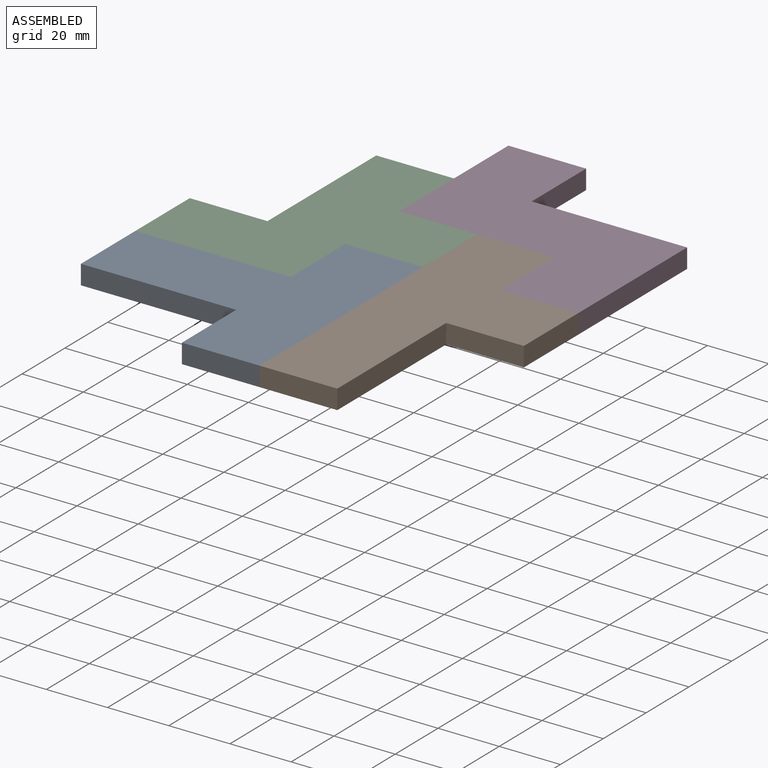
[diagram: assembled view]
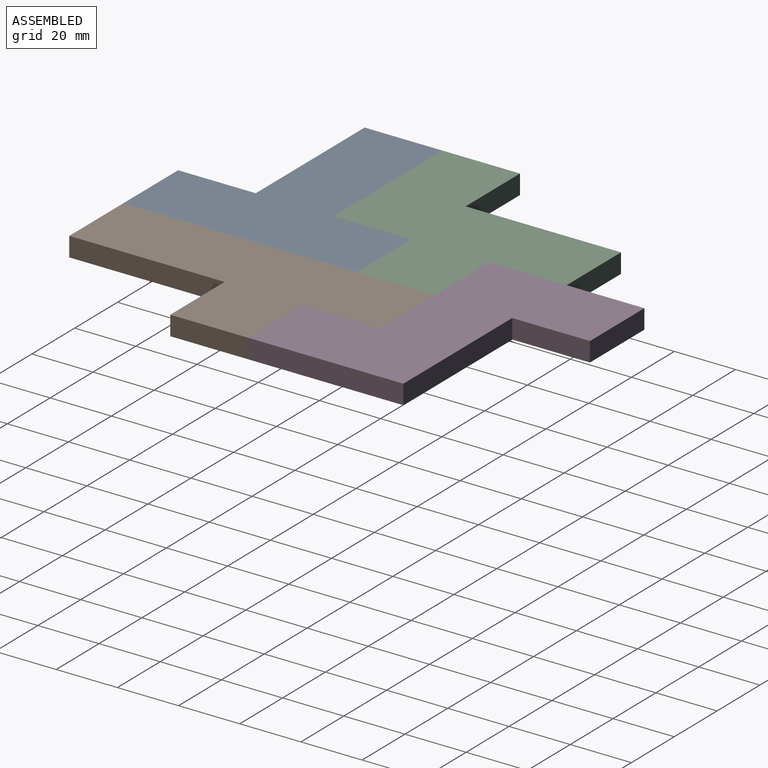
[diagram: assembled view, second angle]
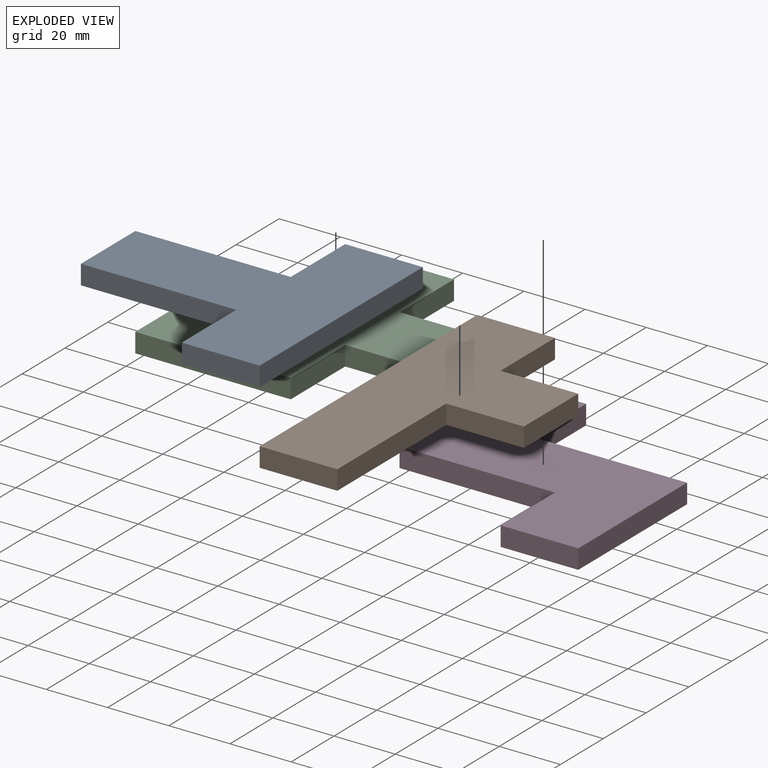
[diagram: exploded view]
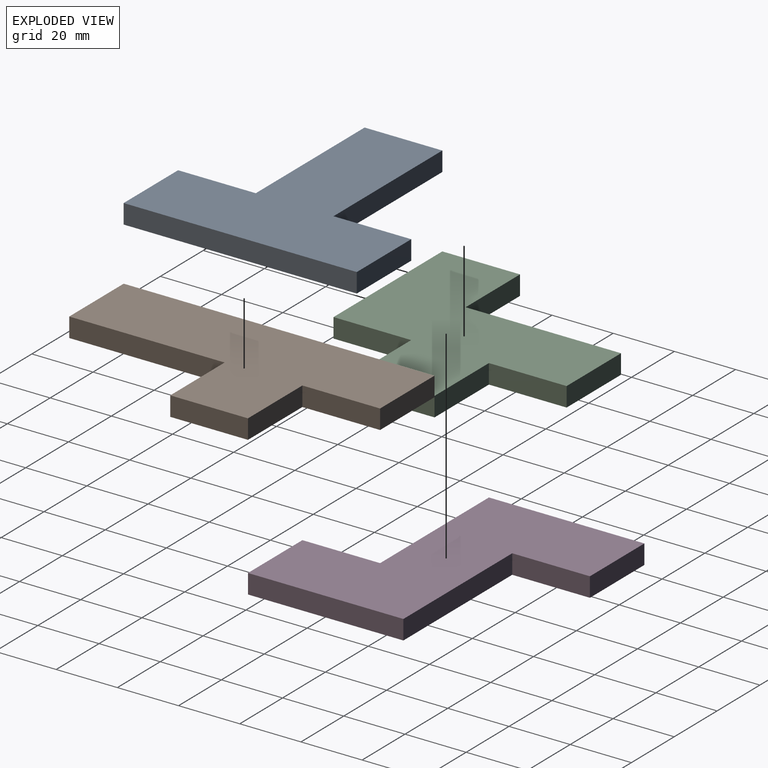
[diagram: exploded view, second angle]
ASSEMBLY  parts=4 mates=3
PART A: 10 faces, bbox 76.2x76.2x6.4 mm
  f0: plane 25.4x6.35mm, normal (0,-1,0), area 161.3mm2, adj f1,f7,f8,f9
  f1: plane 25.4x6.35mm, normal (1,0,0), area 161.3mm2, adj f0,f2,f8,f9
  f2: plane 76.2x6.35mm, normal (0,1,0), area 483.9mm2, adj f1,f3,f8,f9
  f3: plane 25.4x6.35mm, normal (-1,0,0), area 161.3mm2, adj f2,f4,f8,f9
  f4: plane 25.4x6.35mm, normal (0,-1,0), area 161.3mm2, adj f3,f5,f8,f9
  f5: plane 50.8x6.35mm, normal (-1,0,0), area 322.6mm2, adj f4,f6,f8,f9
  f6: plane 25.4x6.35mm, normal (0,-1,0), area 161.3mm2, adj f5,f7,f8,f9
  f7: plane 50.8x6.35mm, normal (1,0,0), area 322.6mm2, adj f0,f6,f8,f9
  f8: plane 76.2x76.2mm, normal (0,0,1), area 3225.8mm2, adj f0,f1,f2,f3,f4,f5,f6,f7
  f9: plane 76.2x76.2mm, normal (0,0,-1), area 3225.8mm2, adj f0,f1,f2,f3,f4,f5,f6,f7
PART B: 10 faces, bbox 50.8x101.6x6.4 mm
  f0: plane 25.4x6.35mm, normal (0,1,0), area 161.3mm2, adj f1,f7,f8,f9
  f1: plane 101.6x6.35mm, normal (-1,0,0), area 645.2mm2, adj f0,f2,f8,f9
  f2: plane 25.4x6.35mm, normal (0,-1,0), area 161.3mm2, adj f1,f3,f8,f9
  f3: plane 50.8x6.35mm, normal (1,0,0), area 322.6mm2, adj f2,f4,f8,f9
  f4: plane 25.4x6.35mm, normal (0,-1,0), area 161.3mm2, adj f3,f5,f8,f9
  f5: plane 25.4x6.35mm, normal (1,0,0), area 161.3mm2, adj f4,f6,f8,f9
  f6: plane 25.4x6.35mm, normal (0,1,0), area 161.3mm2, adj f5,f7,f8,f9
  f7: plane 25.4x6.35mm, normal (1,0,0), area 161.3mm2, adj f0,f6,f8,f9
  f8: plane 101.6x50.8mm, normal (0,0,1), area 3225.8mm2, adj f0,f1,f2,f3,f4,f5,f6,f7
  f9: plane 101.6x50.8mm, normal (0,0,-1), area 3225.8mm2, adj f0,f1,f2,f3,f4,f5,f6,f7
PART C: 12 faces, bbox 76.2x76.2x6.4 mm
  f0: plane 50.8x6.35mm, normal (-1,0,0), area 322.6mm2, adj f1,f9,f10,f11
  f1: plane 25.4x6.35mm, normal (0,-1,0), area 161.3mm2, adj f0,f2,f10,f11
  f2: plane 25.4x6.35mm, normal (-1,0,0), area 161.3mm2, adj f1,f3,f10,f11
  f3: plane 25.4x6.35mm, normal (0,-1,0), area 161.3mm2, adj f2,f4,f10,f11
  f4: plane 25.4x6.35mm, normal (1,0,0), area 161.3mm2, adj f3,f5,f10,f11
  f5: plane 25.4x6.35mm, normal (0,-1,0), area 161.3mm2, adj f4,f6,f10,f11
  f6: plane 25.4x6.35mm, normal (1,0,0), area 161.3mm2, adj f5,f7,f10,f11
  f7: plane 50.8x6.35mm, normal (0,1,0), area 322.6mm2, adj f6,f8,f10,f11
  f8: plane 25.4x6.35mm, normal (1,0,0), area 161.3mm2, adj f7,f9,f10,f11
  f9: plane 25.4x6.35mm, normal (0,1,0), area 161.3mm2, adj f0,f8,f10,f11
  f10: plane 76.2x76.2mm, normal (0,0,1), area 3225.8mm2, adj f0,f1,f2,f3,f4,f5,f6,f7
  f11: plane 76.2x76.2mm, normal (0,0,-1), area 3225.8mm2, adj f0,f1,f2,f3,f4,f5,f6,f7
PART D: 10 faces, bbox 76.2x76.2x6.4 mm
  f0: plane 50.8x6.35mm, normal (0,1,0), area 322.6mm2, adj f1,f7,f8,f9
  f1: plane 25.4x6.35mm, normal (-1,0,0), area 161.3mm2, adj f0,f2,f8,f9
  f2: plane 25.4x6.35mm, normal (0,-1,0), area 161.3mm2, adj f1,f3,f8,f9
  f3: plane 50.8x6.35mm, normal (-1,0,0), area 322.6mm2, adj f2,f4,f8,f9
  f4: plane 50.8x6.35mm, normal (0,-1,0), area 322.6mm2, adj f3,f5,f8,f9
  f5: plane 25.4x6.35mm, normal (1,0,0), area 161.3mm2, adj f4,f6,f8,f9
  f6: plane 25.4x6.35mm, normal (0,1,0), area 161.3mm2, adj f5,f7,f8,f9
  f7: plane 50.8x6.35mm, normal (1,0,0), area 322.6mm2, adj f0,f6,f8,f9
  f8: plane 76.2x76.2mm, normal (0,0,1), area 3225.8mm2, adj f0,f1,f2,f3,f4,f5,f6,f7
  f9: plane 76.2x76.2mm, normal (0,0,-1), area 3225.8mm2, adj f0,f1,f2,f3,f4,f5,f6,f7
PLACE A rot(axis=(0,0,-1),90deg) t=(6.08,124.92,0)mm
PLACE B at identity
PLACE C rot(axis=(0,0,1),90deg) t=(-180.24,7.67,0)mm
PLACE D rot(axis=(0.71,0.71,0),180deg) t=(87.88,156.98,6.35)mm
MATE fastened D.f8 <-> B.f9  axis (0,0,-1) through (31.48,103.9,0)mm
MATE fastened C.f11 <-> A.f9  axis (0,0,-1) through (-19.32,53.1,0)mm
MATE fastened A.f9 <-> B.f9  axis (0,0,-1) through (6.08,2.3,0)mm
